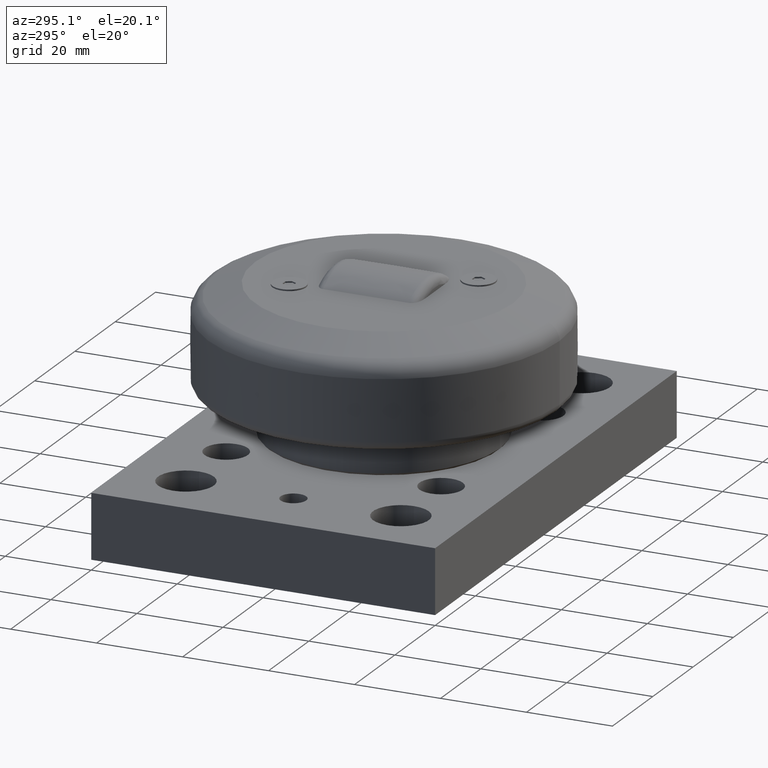
[diagram: clean part render]
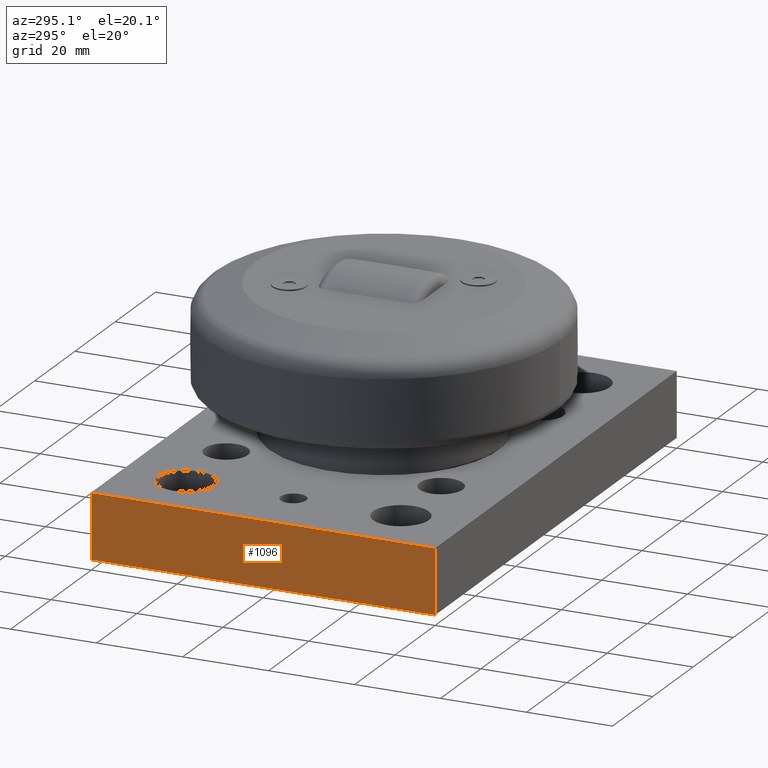
[diagram: same view with one face highlighted and labeled with its STEP entity id]
A machine part, auxiliary view. The second image highlights one B-rep face of the part: STEP entity #1096.
In plain terms, the highlighted planar face has unit normal (-1, -0, 0).
Its self-contained STEP definition (entity closure, byte-faithful):
#180=FACE_OUTER_BOUND('',#267,.T.);
#267=EDGE_LOOP('',(#867,#868,#869,#870));
#347=LINE('',#1786,#422);
#352=LINE('',#1827,#427);
#355=LINE('',#1852,#430);
#358=LINE('',#1857,#433);
#422=VECTOR('',#1386,10.);
#427=VECTOR('',#1423,10.);
#430=VECTOR('',#1448,10.);
#433=VECTOR('',#1455,10.);
#499=VERTEX_POINT('',#1784);
#500=VERTEX_POINT('',#1785);
#518=VERTEX_POINT('',#1823);
#520=VERTEX_POINT('',#1826);
#624=EDGE_CURVE('',#499,#500,#347,.T.);
#644=EDGE_CURVE('',#520,#518,#352,.T.);
#657=EDGE_CURVE('',#518,#499,#355,.T.);
#660=EDGE_CURVE('',#520,#500,#358,.T.);
#867=ORIENTED_EDGE('',*,*,#624,.T.);
#868=ORIENTED_EDGE('',*,*,#660,.F.);
#869=ORIENTED_EDGE('',*,*,#644,.T.);
#870=ORIENTED_EDGE('',*,*,#657,.T.);
#1061=PLANE('',#1212);
#1096=ADVANCED_FACE('',(#180),#1061,.T.);
#1212=AXIS2_PLACEMENT_3D('',#1858,#1456,#1457);
#1386=DIRECTION('',(-2.96729548682753E-16,1.,0.));
#1423=DIRECTION('',(2.96729548682753E-16,-1.,0.));
#1448=DIRECTION('',(0.,0.,1.));
#1455=DIRECTION('',(0.,0.,1.));
#1456=DIRECTION('center_axis',(-1.,-2.96729548682753E-16,0.));
#1457=DIRECTION('ref_axis',(0.,0.,1.));
#1784=CARTESIAN_POINT('',(0.,0.,15.));
#1785=CARTESIAN_POINT('',(-2.37383638946203E-14,80.,15.));
#1786=CARTESIAN_POINT('',(-2.37383638946203E-14,80.,15.));
#1823=CARTESIAN_POINT('',(0.,0.,0.));
#1826=CARTESIAN_POINT('',(-2.37383638946203E-14,80.,0.));
#1827=CARTESIAN_POINT('',(-2.37383638946203E-14,80.,0.));
#1852=CARTESIAN_POINT('',(0.,0.,0.));
#1857=CARTESIAN_POINT('',(-2.37383638946203E-14,80.,0.));
#1858=CARTESIAN_POINT('Origin',(0.,0.,0.));